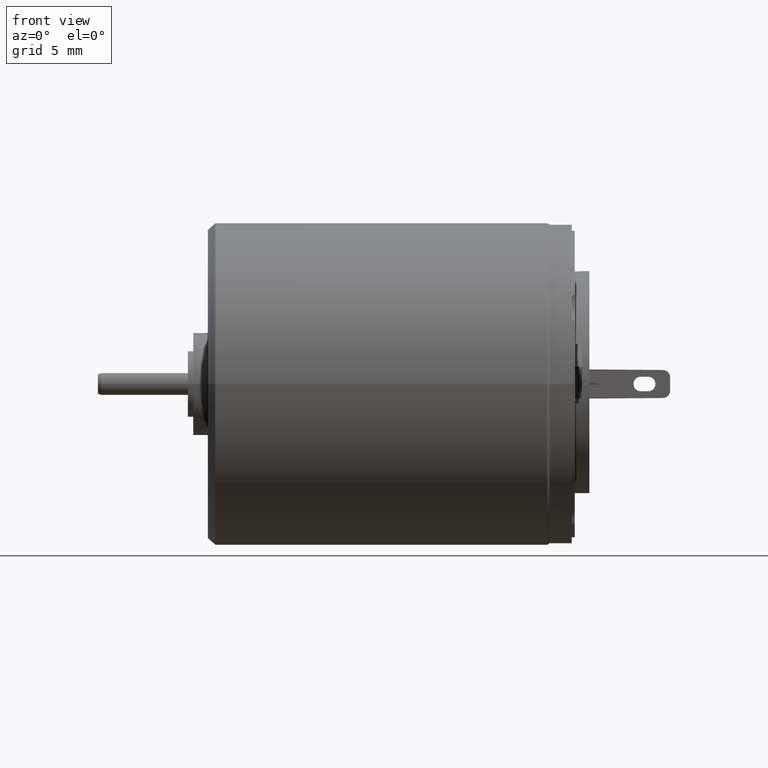
[diagram: clean part render]
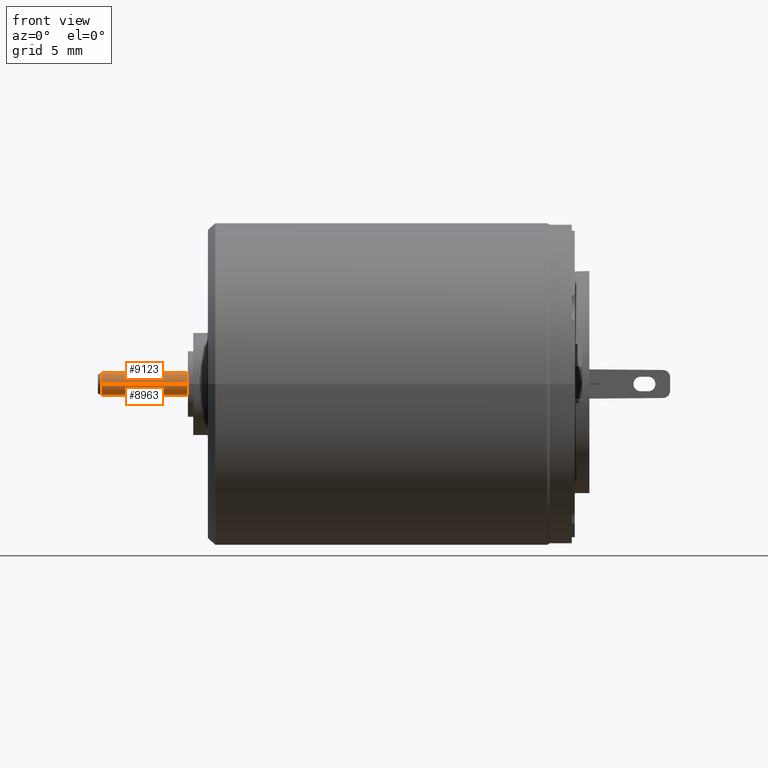
[diagram: same view with one multi-face feature highlighted, each face labeled with its STEP entity id]
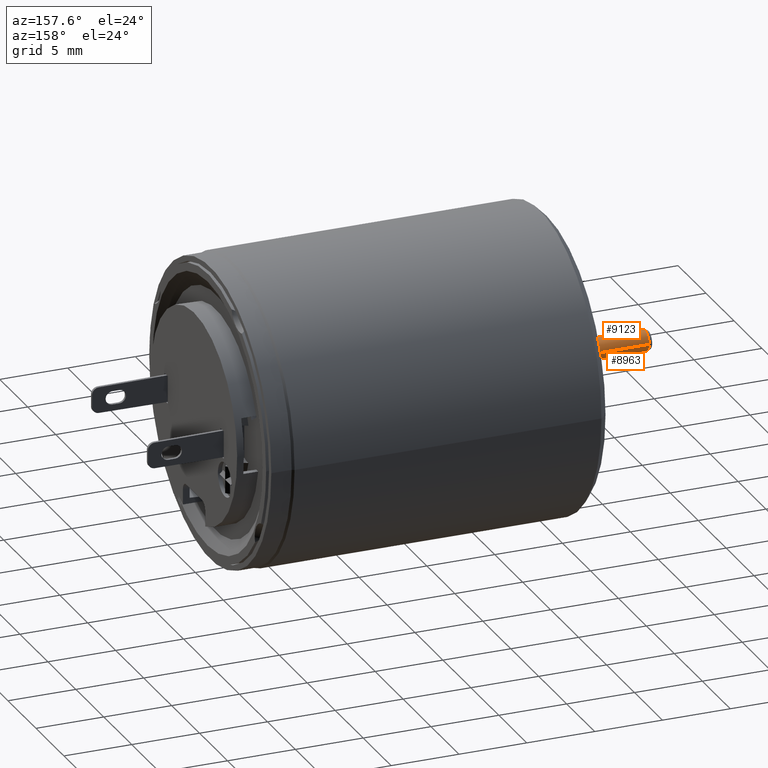
[diagram: same view with one multi-face feature highlighted, each face labeled with its STEP entity id]
A machine part, front view. The highlighted faces form ONE feature: a constant-radius fillet chain: 2 tangent blend faces with common blend radius 0.75 mm. The faces share edges in the B-rep.
A second angle (auxiliary view) of the same feature is appended — it is thin or edge-on in the first view.
Their STEP definitions:
[1] entity #9123 (Cylinder):
#2814=CARTESIAN_POINT('',(-1.727E1,1.436143301350E-14,0.E0));
#2815=DIRECTION('',(-1.E0,0.E0,0.E0));
#2816=DIRECTION('',(0.E0,-1.E0,-1.126673313605E-10));
#2817=AXIS2_PLACEMENT_3D('',#2814,#2815,#2816);
#2819=DIRECTION('',(-1.E0,1.138146510778E-14,-9.221684710727E-11));
#2820=VECTOR('',#2819,5.872304263950E0);
#2821=CARTESIAN_POINT('',(-1.727E1,-7.5E-1,-8.450049852036E-11));
#2822=LINE('',#2821,#2820);
#2823=CARTESIAN_POINT('',(-2.314230426395E1,1.508058287552E-14,0.E0));
#2824=DIRECTION('',(-1.E0,0.E0,0.E0));
#2825=DIRECTION('',(0.E0,-1.E0,0.E0));
#2826=AXIS2_PLACEMENT_3D('',#2823,#2824,#2825);
#2828=DIRECTION('',(1.E0,1.109787378450E-14,-1.066064721336E-10));
#2829=VECTOR('',#2828,5.872304263950E0);
#2830=CARTESIAN_POINT('',(-2.314230426395E1,7.499999999999E-1,
6.260258014644E-10));
#2831=LINE('',#2830,#2829);
#4385=CARTESIAN_POINT('',(-2.314230426395E1,-7.499999999998E-1,0.E0));
#4386=CARTESIAN_POINT('',(-2.314230426395E1,7.499999999999E-1,0.E0));
#4387=VERTEX_POINT('',#4385);
#4388=VERTEX_POINT('',#4386);
#5130=CARTESIAN_POINT('',(-1.727E1,7.5E-1,0.E0));
#5131=CARTESIAN_POINT('',(-1.727E1,-7.5E-1,-8.450064755622E-11));
#5132=VERTEX_POINT('',#5130);
#5133=VERTEX_POINT('',#5131);
#9111=CARTESIAN_POINT('',(1.023846085279E0,1.212108300834E-14,0.E0));
#9112=DIRECTION('',(-1.E0,0.E0,0.E0));
#9113=DIRECTION('',(0.E0,1.E0,0.E0));
#9114=AXIS2_PLACEMENT_3D('',#9111,#9112,#9113);
#9115=CYLINDRICAL_SURFACE('',#9114,7.5E-1);
#9116=ORIENTED_EDGE('',*,*,#8991,.F.);
#9117=ORIENTED_EDGE('',*,*,#8959,.T.);
#9119=ORIENTED_EDGE('',*,*,#9118,.T.);
#9120=ORIENTED_EDGE('',*,*,#8955,.T.);
#9121=EDGE_LOOP('',(#9116,#9117,#9119,#9120));
#9122=FACE_OUTER_BOUND('',#9121,.F.);
#9123=ADVANCED_FACE('',(#9122),#9115,.T.);
#2818=CIRCLE('',#2817,7.5E-1);
#2827=CIRCLE('',#2826,7.5E-1);
#8955=EDGE_CURVE('',#4388,#5132,#2831,.T.);
#8959=EDGE_CURVE('',#5133,#4387,#2822,.T.);
#8991=EDGE_CURVE('',#5133,#5132,#2818,.T.);
#9118=EDGE_CURVE('',#4387,#4388,#2827,.T.);
[2] entity #8963 (Cylinder):
#2725=CARTESIAN_POINT('',(-1.727E1,1.436143301350E-14,0.E0));
#2726=DIRECTION('',(-1.E0,0.E0,0.E0));
#2727=DIRECTION('',(0.E0,1.E0,0.E0));
#2728=AXIS2_PLACEMENT_3D('',#2725,#2726,#2727);
#2819=DIRECTION('',(-1.E0,1.138146510778E-14,-9.221684710727E-11));
#2820=VECTOR('',#2819,5.872304263950E0);
#2821=CARTESIAN_POINT('',(-1.727E1,-7.5E-1,-8.450049852036E-11));
#2822=LINE('',#2821,#2820);
#2828=DIRECTION('',(1.E0,1.109787378450E-14,-1.066064721336E-10));
#2829=VECTOR('',#2828,5.872304263950E0);
#2830=CARTESIAN_POINT('',(-2.314230426395E1,7.499999999999E-1,
6.260258014644E-10));
#2831=LINE('',#2830,#2829);
#2878=CARTESIAN_POINT('',(-2.314230426395E1,1.508058287565E-14,0.E0));
#2879=DIRECTION('',(1.E0,0.E0,0.E0));
#2880=DIRECTION('',(0.E0,-1.E0,0.E0));
#2881=AXIS2_PLACEMENT_3D('',#2878,#2879,#2880);
#4385=CARTESIAN_POINT('',(-2.314230426395E1,-7.499999999998E-1,0.E0));
#4386=CARTESIAN_POINT('',(-2.314230426395E1,7.499999999999E-1,0.E0));
#4387=VERTEX_POINT('',#4385);
#4388=VERTEX_POINT('',#4386);
#5130=CARTESIAN_POINT('',(-1.727E1,7.5E-1,0.E0));
#5131=CARTESIAN_POINT('',(-1.727E1,-7.5E-1,-8.450064755622E-11));
#5132=VERTEX_POINT('',#5130);
#5133=VERTEX_POINT('',#5131);
#8948=CARTESIAN_POINT('',(1.023846085279E0,1.212108300834E-14,0.E0));
#8949=DIRECTION('',(-1.E0,0.E0,0.E0));
#8950=DIRECTION('',(0.E0,1.E0,0.E0));
#8951=AXIS2_PLACEMENT_3D('',#8948,#8949,#8950);
#8952=CYLINDRICAL_SURFACE('',#8951,7.5E-1);
#8954=ORIENTED_EDGE('',*,*,#8953,.F.);
#8956=ORIENTED_EDGE('',*,*,#8955,.F.);
#8958=ORIENTED_EDGE('',*,*,#8957,.F.);
#8960=ORIENTED_EDGE('',*,*,#8959,.F.);
#8961=EDGE_LOOP('',(#8954,#8956,#8958,#8960));
#8962=FACE_OUTER_BOUND('',#8961,.F.);
#8963=ADVANCED_FACE('',(#8962),#8952,.T.);
#2729=CIRCLE('',#2728,7.5E-1);
#2882=CIRCLE('',#2881,7.499999999998E-1);
#8953=EDGE_CURVE('',#5132,#5133,#2729,.T.);
#8955=EDGE_CURVE('',#4388,#5132,#2831,.T.);
#8957=EDGE_CURVE('',#4387,#4388,#2882,.T.);
#8959=EDGE_CURVE('',#5133,#4387,#2822,.T.);